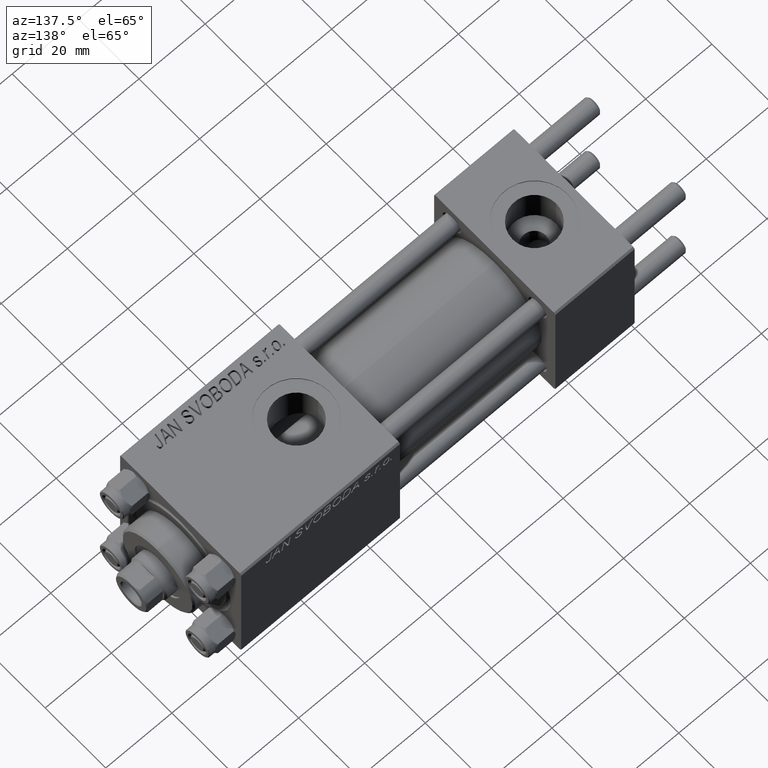
[diagram: clean part render]
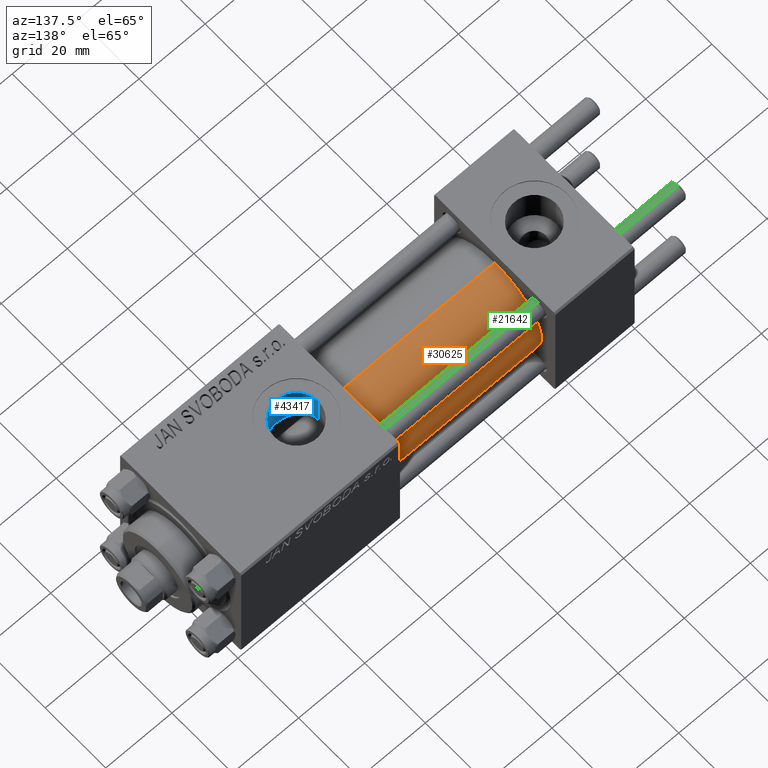
[diagram: same view with three faces highlighted in distinct colors, each labeled with its STEP entity id]
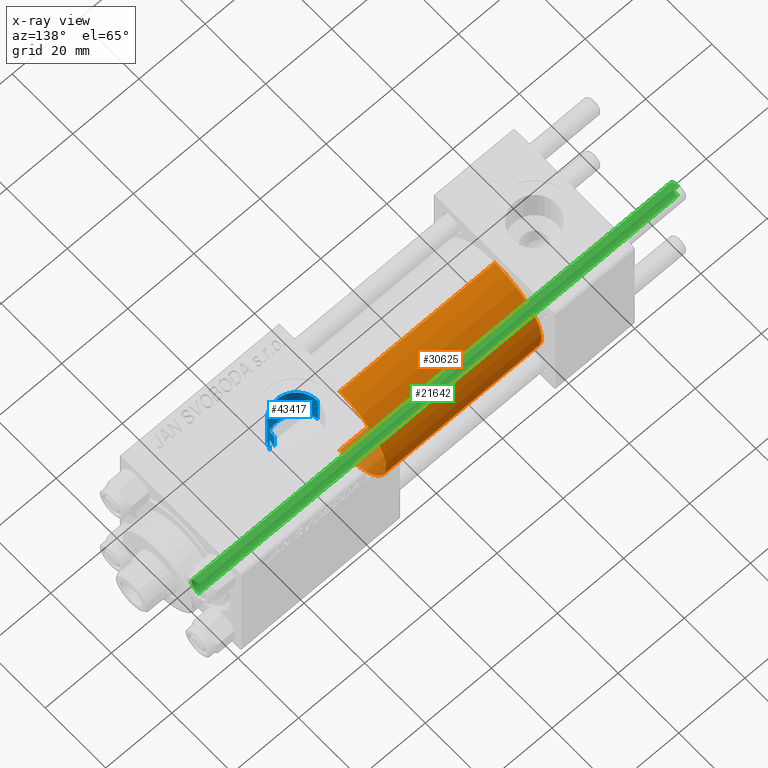
[diagram: x-ray of the same camera — body ghosted, the three highlighted faces saturated]
A machine part, auxiliary view with three faces highlighted in distinct colors.
The next image is the same camera in x-ray (body ghosted, the three faces saturated) — at least one of them is partly hidden behind the body in this view.
Their STEP definitions:

[orange] entity #30625 — the highlighted cylindrical surface (partial cylindrical patch) has radius 15.5 mm, axis along (-1, -0, -0).
#592 = VERTEX_POINT ( 'NONE', #14333 ) ;
#2558 = DIRECTION ( 'NONE',  ( 1.000000000000000000, 0.000000000000000000, 0.000000000000000000 ) ) ;
#6234 = EDGE_CURVE ( 'NONE', #41260, #29520, #35690, .T. ) ;
#7079 = EDGE_CURVE ( 'NONE', #592, #41260, #37062, .T. ) ;
#9340 = AXIS2_PLACEMENT_3D ( 'NONE', #44126, #24996, #9641 ) ;
#9641 = DIRECTION ( 'NONE',  ( 0.000000000000000000, 0.000000000000000000, 1.000000000000000000 ) ) ;
#10344 = CARTESIAN_POINT ( 'NONE',  ( 71.00000000000001421, 0.000000000000000000, 0.000000000000000000 ) ) ;
#10377 = FACE_OUTER_BOUND ( 'NONE', #29772, .T. ) ;
#11426 = CARTESIAN_POINT ( 'NONE',  ( 71.00000000000001421, 0.000000000000000000, 15.50000000000000000 ) ) ;
#12254 = DIRECTION ( 'NONE',  ( -1.000000000000000000, -0.000000000000000000, -0.000000000000000000 ) ) ;
#14333 = CARTESIAN_POINT ( 'NONE',  ( 71.00000000000001421, 1.898202538678397557E-15, -15.50000000000000000 ) ) ;
#18184 = CYLINDRICAL_SURFACE ( 'NONE', #9340, 15.50000000000000000 ) ;
#21073 = AXIS2_PLACEMENT_3D ( 'NONE', #10344, #25692, #41051 ) ;
#21658 = VECTOR ( 'NONE', #12254, 1000.000000000000000 ) ;
#23895 = ORIENTED_EDGE ( 'NONE', *, *, #46356, .F. ) ;
#24299 = ORIENTED_EDGE ( 'NONE', *, *, #42902, .F. ) ;
#24996 = DIRECTION ( 'NONE',  ( -1.000000000000000000, -0.000000000000000000, -0.000000000000000000 ) ) ;
#25494 = CARTESIAN_POINT ( 'NONE',  ( 71.00000000000001421, 1.898202538678397557E-15, -15.50000000000000000 ) ) ;
#25692 = DIRECTION ( 'NONE',  ( 1.000000000000000000, 0.000000000000000000, 0.000000000000000000 ) ) ;
#27697 = ORIENTED_EDGE ( 'NONE', *, *, #6234, .T. ) ;
#27868 = CARTESIAN_POINT ( 'NONE',  ( 71.00000000000001421, 0.000000000000000000, 15.50000000000000000 ) ) ;
#29520 = VERTEX_POINT ( 'NONE', #39040 ) ;
#29772 = EDGE_LOOP ( 'NONE', ( #23895, #41589, #27697, #24299 ) ) ;
#30625 = ADVANCED_FACE ( 'NONE', ( #10377 ), #18184, .T. ) ;
#31381 = VERTEX_POINT ( 'NONE', #11426 ) ;
#34716 = CIRCLE ( 'NONE', #21073, 15.50000000000000000 ) ;
#35690 = CIRCLE ( 'NONE', #44525, 15.50000000000000000 ) ;
#37062 = LINE ( 'NONE', #25494, #41321 ) ;
#39040 = CARTESIAN_POINT ( 'NONE',  ( 24.00000000000000000, 0.000000000000000000, 15.50000000000000000 ) ) ;
#39954 = LINE ( 'NONE', #27868, #21658 ) ;
#41051 = DIRECTION ( 'NONE',  ( 0.000000000000000000, 0.000000000000000000, -1.000000000000000000 ) ) ;
#41086 = CARTESIAN_POINT ( 'NONE',  ( 24.00000000000000000, 1.898202538678397557E-15, -15.50000000000000000 ) ) ;
#41260 = VERTEX_POINT ( 'NONE', #41086 ) ;
#41321 = VECTOR ( 'NONE', #48400, 1000.000000000000000 ) ;
#41589 = ORIENTED_EDGE ( 'NONE', *, *, #7079, .T. ) ;
#42902 = EDGE_CURVE ( 'NONE', #31381, #29520, #39954, .T. ) ;
#44126 = CARTESIAN_POINT ( 'NONE',  ( 71.00000000000001421, 0.000000000000000000, 0.000000000000000000 ) ) ;
#44525 = AXIS2_PLACEMENT_3D ( 'NONE', #47909, #2558, #48392 ) ;
#46356 = EDGE_CURVE ( 'NONE', #592, #31381, #34716, .T. ) ;
#47909 = CARTESIAN_POINT ( 'NONE',  ( 24.00000000000000000, 0.000000000000000000, 0.000000000000000000 ) ) ;
#48392 = DIRECTION ( 'NONE',  ( 0.000000000000000000, 0.000000000000000000, 1.000000000000000000 ) ) ;
#48400 = DIRECTION ( 'NONE',  ( -1.000000000000000000, -0.000000000000000000, -0.000000000000000000 ) ) ;

[blue] entity #43417 — the highlighted cylindrical surface (edge-blend (fillet) strip) has radius 6.58 mm, axis along (0, 0, -1).
#674 = ORIENTED_EDGE ( 'NONE', *, *, #16062, .T. ) ;
#1621 = EDGE_CURVE ( 'NONE', #18648, #30991, #8314, .T. ) ;
#1843 = VERTEX_POINT ( 'NONE', #15265 ) ;
#2386 = DIRECTION ( 'NONE',  ( 0.000000000000000000, 0.000000000000000000, -1.000000000000000000 ) ) ;
#2982 = CARTESIAN_POINT ( 'NONE',  ( 77.72104259078042787, -1.977670684214428043, 9.804446867313098224 ) ) ;
#3983 = CARTESIAN_POINT ( 'NONE',  ( 80.16020215073048405, -5.356874842517142632, 8.448716332623810388 ) ) ;
#4529 = DIRECTION ( 'NONE',  ( 0.000000000000000000, 0.000000000000000000, -1.000000000000000000 ) ) ;
#4708 = EDGE_LOOP ( 'NONE', ( #41036, #674, #21962, #44577, #46246, #30858 ) ) ;
#5186 = VERTEX_POINT ( 'NONE', #43993 ) ;
#5467 = EDGE_CURVE ( 'NONE', #1843, #21233, #15627, .T. ) ;
#5787 = CARTESIAN_POINT ( 'NONE',  ( 87.89699318866286148, -5.305288046703262594, 8.477775428654018341 ) ) ;
#6770 = CARTESIAN_POINT ( 'NONE',  ( 78.91948560029506154, -4.185857250486422210, 9.083179932574980242 ) ) ;
#6889 = CYLINDRICAL_SURFACE ( 'NONE', #39372, 6.580000000001542837 ) ;
#7123 = CARTESIAN_POINT ( 'NONE',  ( 90.58000000000154728, 1.836897619300433381E-15, 15.00000000000000000 ) ) ;
#7623 = CARTESIAN_POINT ( 'NONE',  ( 90.30000000000001137, -1.899052395280420136, 14.87930105885285670 ) ) ;
#8314 = LINE ( 'NONE', #23937, #18021 ) ;
#8827 = DIRECTION ( 'NONE',  ( -0.000000000000000000, -0.000000000000000000, 1.000000000000000000 ) ) ;
#9475 = EDGE_CURVE ( 'NONE', #34911, #1843, #48674, .T. ) ;
#9574 = CARTESIAN_POINT ( 'NONE',  ( 88.19718467613775204, -5.071121963172631197, 8.619888602053425330 ) ) ;
#9934 = DIRECTION ( 'NONE',  ( -1.000000000000000000, 0.000000000000000000, 0.000000000000000000 ) ) ;
#10550 = CARTESIAN_POINT ( 'NONE',  ( 80.48004077057568395, -5.572564248888139282, 8.306509127488531874 ) ) ;
#10797 = CARTESIAN_POINT ( 'NONE',  ( 78.16834223545102134, -3.071777053897142729, 9.522948337697433985 ) ) ;
#12702 = CARTESIAN_POINT ( 'NONE',  ( 90.58000000000154728, -9.289058821376599092E-16, 19.80000000000000071 ) ) ;
#13102 = CARTESIAN_POINT ( 'NONE',  ( 82.64228046384747017, -6.441510615516904181, 7.649229527461429257 ) ) ;
#13359 = CARTESIAN_POINT ( 'NONE',  ( 88.75695250607545006, -4.561896889324866144, 8.903678834413629062 ) ) ;
#13842 = CARTESIAN_POINT ( 'NONE',  ( 87.26053252520590320, -5.728070196491263921, 8.200680661955367157 ) ) ;
#14439 = CARTESIAN_POINT ( 'NONE',  ( 90.46247493449395449, -1.278752734038846484, 14.94875937294843737 ) ) ;
#15265 = CARTESIAN_POINT ( 'NONE',  ( 77.41999999999846693, -1.734723475976806897E-15, 19.80000000000000071 ) ) ;
#15627 = LINE ( 'NONE', #46071, #40513 ) ;
#16062 = EDGE_CURVE ( 'NONE', #34911, #5186, #21533, .T. ) ;
#16889 = B_SPLINE_CURVE_WITH_KNOTS ( 'NONE', 3,
 ( #7123, #26506, #34318, #14439, #38339, #7623 ),
 .UNSPECIFIED., .F., .F.,
 ( 4, 2, 4 ),
 ( 0.001923267627926015643, 0.002881828648815649985, 0.003840389669705283893 ),
 .UNSPECIFIED. ) ;
#17125 = CARTESIAN_POINT ( 'NONE',  ( 90.03601729897108896, -2.648259396322893089, 9.649752199410302822 ) ) ;
#17380 = CARTESIAN_POINT ( 'NONE',  ( 83.84132420776212768, -6.581215419008478840, 7.529131557805247787 ) ) ;
#17625 = CARTESIAN_POINT ( 'NONE',  ( 89.47667727346387778, -3.667500690329295931, 9.309199649381490360 ) ) ;
#18021 = VECTOR ( 'NONE', #8827, 1000.000000000000000 ) ;
#18117 = CARTESIAN_POINT ( 'NONE',  ( 87.74050804270864035, -5.416766998257490862, 8.406790300727948306 ) ) ;
#18351 = CARTESIAN_POINT ( 'NONE',  ( 77.99714712711040931, -2.723766581249583485, 9.629423614267258458 ) ) ;
#18589 = CARTESIAN_POINT ( 'NONE',  ( 78.79875737437667738, -4.034886358906389248, 9.151392050136836431 ) ) ;
#18648 = VERTEX_POINT ( 'NONE', #38623 ) ;
#20916 = CARTESIAN_POINT ( 'NONE',  ( 90.18384735178129574, -2.284382302762963501, 9.743491762341799145 ) ) ;
#21154 = CARTESIAN_POINT ( 'NONE',  ( 85.83530013697877337, -6.321933289868085559, 7.748495657718812879 ) ) ;
#21233 = VERTEX_POINT ( 'NONE', #29696 ) ;
#21533 = LINE ( 'NONE', #36880, #42440 ) ;
#21962 = ORIENTED_EDGE ( 'NONE', *, *, #48186, .T. ) ;
#22130 = CARTESIAN_POINT ( 'NONE',  ( 81.15150766959031614, -5.943877247083126925, 8.044991576418468071 ) ) ;
#23937 = CARTESIAN_POINT ( 'NONE',  ( 90.30000000000001137, -1.899052395280420136, 42.80000000000000426 ) ) ;
#24686 = CARTESIAN_POINT ( 'NONE',  ( 85.05563542025694801, -6.507095227759212008, 7.594134426896898660 ) ) ;
#25041 = DIRECTION ( 'NONE',  ( 0.000000000000000000, 0.000000000000000000, -1.000000000000000000 ) ) ;
#25423 = CARTESIAN_POINT ( 'NONE',  ( 86.39211994537743067, -6.132805105780794186, 7.899218132206713427 ) ) ;
#25658 = CARTESIAN_POINT ( 'NONE',  ( 88.34134544482054707, -4.948221379670047604, 8.691185487698470880 ) ) ;
#25898 = CARTESIAN_POINT ( 'NONE',  ( 78.46622740148208663, -3.565203004854784474, 9.344512687240586146 ) ) ;
#26398 = CARTESIAN_POINT ( 'NONE',  ( 77.41999999999846693, 1.225496641077837722E-15, 9.999999999999998224 ) ) ;
#26506 = CARTESIAN_POINT ( 'NONE',  ( 90.58000000000156149, -0.3230844264541308797, 14.99999999999999822 ) ) ;
#28452 = CARTESIAN_POINT ( 'NONE',  ( 82.25327158685063011, -6.347078162380216604, 7.727766182684421281 ) ) ;
#28702 = CARTESIAN_POINT ( 'NONE',  ( 89.68316260257665817, -3.338928794743214468, 9.433056230293079381 ) ) ;
#29194 = CARTESIAN_POINT ( 'NONE',  ( 86.92434068310684836, -5.907044672534588869, 8.071096920454994716 ) ) ;
#29696 = CARTESIAN_POINT ( 'NONE',  ( 77.41999999999846693, 1.225496641077837722E-15, 9.999999999999998224 ) ) ;
#30171 = CARTESIAN_POINT ( 'NONE',  ( 79.57031396582577543, -4.880372653833860319, 8.732632965334568453 ) ) ;
#30663 = CARTESIAN_POINT ( 'NONE',  ( 77.56705469300284506, -1.397686090543303283, 9.903818455115036556 ) ) ;
#30858 = ORIENTED_EDGE ( 'NONE', *, *, #5467, .F. ) ;
#30946 = B_SPLINE_CURVE_WITH_KNOTS ( 'NONE', 3,
 ( #36750, #20916, #17125, #28702, #17625, #47843, #13359, #25658, #9574, #5787, #18117, #13842, #29194, #25423, #48578, #21154, #37232, #24686, #44541, #40775, #17380, #32739, #48091, #47590, #13102, #28452, #43817, #40043, #22130, #10550, #3983, #30171, #41256, #6770, #18589, #37483, #25898, #10797, #18351, #33466, #2982, #33707, #30663, #34460, #38481, #26398 ),
 .UNSPECIFIED., .F., .F.,
 ( 4, 2, 2, 2, 2, 2, 2, 2, 2, 2, 2, 2, 2, 2, 2, 2, 2, 2, 2, 2, 2, 2, 4 ),
 ( 0.000000000000000000, 0.001207791230099372441, 0.002415582460198744882, 0.003623373690298115155, 0.004227269305347786631, 0.004831164920397457672, 0.006038956150496800623, 0.006642851765546489880, 0.007246747380596180003, 0.008454538610695601017, 0.009058434225745329305, 0.009662329840795061062, 0.01026622545584479108, 0.01087012107089451937, 0.01207791230099397942, 0.01328570353109343946, 0.01449349476119290124, 0.01509739037624264514, 0.01570128599129239078, 0.01690907722139185429, 0.01751297283644158778, 0.01811686845149132127, 0.01932465968159079173 ),
 .UNSPECIFIED. ) ;
#30974 = CARTESIAN_POINT ( 'NONE',  ( 84.00000000000000000, -1.734723475976806897E-15, 19.80000000000000071 ) ) ;
#30991 = VERTEX_POINT ( 'NONE', #35161 ) ;
#32739 = CARTESIAN_POINT ( 'NONE',  ( 83.43610688730976221, -6.558932760434257325, 7.548550817887899278 ) ) ;
#32854 = FACE_OUTER_BOUND ( 'NONE', #4708, .T. ) ;
#33466 = CARTESIAN_POINT ( 'NONE',  ( 77.78468472322818172, -2.169203254887546617, 9.763745855050723677 ) ) ;
#33707 = CARTESIAN_POINT ( 'NONE',  ( 77.61241581301695192, -1.592248641449762747, 9.874366003595781649 ) ) ;
#34318 = CARTESIAN_POINT ( 'NONE',  ( 90.55605924908761040, -0.6456608678150235203, 14.98945420583744870 ) ) ;
#34460 = CARTESIAN_POINT ( 'NONE',  ( 77.45763783829498550, -0.8084208477571691587, 9.975121118623741623 ) ) ;
#34513 = DIRECTION ( 'NONE',  ( 1.000000000000000000, 0.000000000000000000, 0.000000000000000000 ) ) ;
#34911 = VERTEX_POINT ( 'NONE', #12702 ) ;
#35161 = CARTESIAN_POINT ( 'NONE',  ( 90.30000000000001137, -1.899052395280420136, 14.87930105885285670 ) ) ;
#36750 = CARTESIAN_POINT ( 'NONE',  ( 90.30000000000001137, -1.899052395280420136, 9.818024241158690657 ) ) ;
#36880 = CARTESIAN_POINT ( 'NONE',  ( 90.58000000000154728, -9.289058821376597120E-16, 42.80000000000000426 ) ) ;
#37232 = CARTESIAN_POINT ( 'NONE',  ( 85.64143006621837628, -6.375121249720390182, 7.704616833470068649 ) ) ;
#37483 = CARTESIAN_POINT ( 'NONE',  ( 78.57242859662287060, -3.724876030303978069, 9.281895439158068584 ) ) ;
#38030 = EDGE_CURVE ( 'NONE', #18648, #21233, #30946, .T. ) ;
#38339 = CARTESIAN_POINT ( 'NONE',  ( 90.39284622331669539, -1.591040247564623700, 14.91861279833453757 ) ) ;
#38481 = CARTESIAN_POINT ( 'NONE',  ( 77.41999999999848114, -0.4081853129699585803, 10.00000000000000711 ) ) ;
#38623 = CARTESIAN_POINT ( 'NONE',  ( 90.30000000000001137, -1.899052395280420136, 9.818024241158690657 ) ) ;
#39372 = AXIS2_PLACEMENT_3D ( 'NONE', #45388, #25041, #9934 ) ;
#40043 = CARTESIAN_POINT ( 'NONE',  ( 81.50365122394816808, -6.100731835174567408, 7.925108619061488113 ) ) ;
#40513 = VECTOR ( 'NONE', #4529, 1000.000000000000000 ) ;
#40775 = CARTESIAN_POINT ( 'NONE',  ( 84.04743762832036680, -6.582974628388996940, 7.527585999843090292 ) ) ;
#41036 = ORIENTED_EDGE ( 'NONE', *, *, #9475, .F. ) ;
#41256 = CARTESIAN_POINT ( 'NONE',  ( 79.29730408322323854, -4.618177244596259889, 8.875509752877485781 ) ) ;
#42440 = VECTOR ( 'NONE', #2386, 1000.000000000000000 ) ;
#43417 = ADVANCED_FACE ( 'NONE', ( #32854 ), #6889, .F. ) ;
#43817 = CARTESIAN_POINT ( 'NONE',  ( 82.06128195139868353, -6.290973204691355569, 7.773687993804112573 ) ) ;
#43993 = CARTESIAN_POINT ( 'NONE',  ( 90.58000000000154728, 1.836897619300433381E-15, 15.00000000000000000 ) ) ;
#44541 = CARTESIAN_POINT ( 'NONE',  ( 84.65744280686338641, -6.559709605006789346, 7.547889352008899877 ) ) ;
#44577 = ORIENTED_EDGE ( 'NONE', *, *, #1621, .F. ) ;
#45388 = CARTESIAN_POINT ( 'NONE',  ( 84.00000000000000000, -1.734723475976806897E-15, 42.80000000000000426 ) ) ;
#46071 = CARTESIAN_POINT ( 'NONE',  ( 77.41999999999846693, -1.734723475976806897E-15, 42.80000000000000426 ) ) ;
#46246 = ORIENTED_EDGE ( 'NONE', *, *, #38030, .T. ) ;
#46253 = AXIS2_PLACEMENT_3D ( 'NONE', #30974, #46328, #34513 ) ;
#46328 = DIRECTION ( 'NONE',  ( -0.000000000000000000, -0.000000000000000000, -1.000000000000000000 ) ) ;
#47590 = CARTESIAN_POINT ( 'NONE',  ( 82.83871781191031403, -6.479820246555592966, 7.616654439233103702 ) ) ;
#47843 = CARTESIAN_POINT ( 'NONE',  ( 89.01171256368644435, -4.281038711601321545, 9.043476487246550732 ) ) ;
#48091 = CARTESIAN_POINT ( 'NONE',  ( 83.23563096081821300, -6.538530929802691460, 7.566314066596407706 ) ) ;
#48186 = EDGE_CURVE ( 'NONE', #5186, #30991, #16889, .T. ) ;
#48578 = CARTESIAN_POINT ( 'NONE',  ( 86.21002104074251804, -6.200884946022790167, 7.845702732414576275 ) ) ;
#48674 = CIRCLE ( 'NONE', #46253, 6.580000000001542837 ) ;

[green] entity #21642 — the highlighted cylindrical surface (edge-blend (fillet) strip) has radius 2.5 mm, axis along (-1, -0, -0).
#357 = DIRECTION ( 'NONE',  ( -0.000000000000000000, -0.000000000000000000, 1.000000000000000000 ) ) ;
#480 = CARTESIAN_POINT ( 'NONE',  ( 2.500000000000000000, 3.061616997868383141E-16, 0.5000000000000559552 ) ) ;
#2121 = AXIS2_PLACEMENT_3D ( 'NONE', #16573, #13295, #32676 ) ;
#6746 = AXIS2_PLACEMENT_3D ( 'NONE', #12002, #35411, #42956 ) ;
#7728 = FACE_OUTER_BOUND ( 'NONE', #10321, .T. ) ;
#8121 = LINE ( 'NONE', #47146, #9843 ) ;
#8482 = ORIENTED_EDGE ( 'NONE', *, *, #48293, .F. ) ;
#9843 = VECTOR ( 'NONE', #24231, 1000.000000000000000 ) ;
#10321 = EDGE_LOOP ( 'NONE', ( #8482, #21373, #24157, #30590 ) ) ;
#12002 = CARTESIAN_POINT ( 'NONE',  ( 0.000000000000000000, 0.000000000000000000, 146.0000000000000000 ) ) ;
#12769 = EDGE_CURVE ( 'NONE', #22203, #38321, #39100, .T. ) ;
#13295 = DIRECTION ( 'NONE',  ( 0.000000000000000000, 0.000000000000000000, -1.000000000000000000 ) ) ;
#15721 = DIRECTION ( 'NONE',  ( 1.000000000000000000, 0.000000000000000000, 0.000000000000000000 ) ) ;
#15973 = DIRECTION ( 'NONE',  ( -0.000000000000000000, -0.000000000000000000, -1.000000000000000000 ) ) ;
#16217 = CARTESIAN_POINT ( 'NONE',  ( -2.500000000000000000, 0.000000000000000000, 146.0000000000000000 ) ) ;
#16573 = CARTESIAN_POINT ( 'NONE',  ( 0.000000000000000000, 0.000000000000000000, 145.5000000000000284 ) ) ;
#16647 = VERTEX_POINT ( 'NONE', #480 ) ;
#19187 = CARTESIAN_POINT ( 'NONE',  ( 2.500000000000000000, 3.061616997868383141E-16, 145.5000000000000284 ) ) ;
#19493 = CARTESIAN_POINT ( 'NONE',  ( 0.000000000000000000, 0.000000000000000000, 0.5000000000000559552 ) ) ;
#19754 = LINE ( 'NONE', #16217, #47292 ) ;
#21373 = ORIENTED_EDGE ( 'NONE', *, *, #12769, .T. ) ;
#21642 = ADVANCED_FACE ( 'NONE', ( #7728 ), #23078, .T. ) ;
#22203 = VERTEX_POINT ( 'NONE', #19187 ) ;
#23078 = CYLINDRICAL_SURFACE ( 'NONE', #6746, 2.500000000000000000 ) ;
#24157 = ORIENTED_EDGE ( 'NONE', *, *, #34956, .T. ) ;
#24231 = DIRECTION ( 'NONE',  ( -0.000000000000000000, -0.000000000000000000, -1.000000000000000000 ) ) ;
#30590 = ORIENTED_EDGE ( 'NONE', *, *, #45775, .T. ) ;
#32420 = CARTESIAN_POINT ( 'NONE',  ( -2.500000000000000000, 0.000000000000000000, 145.5000000000000284 ) ) ;
#32676 = DIRECTION ( 'NONE',  ( 1.000000000000000000, 0.000000000000000000, 0.000000000000000000 ) ) ;
#33364 = CARTESIAN_POINT ( 'NONE',  ( -2.500000000000000000, 0.000000000000000000, 0.5000000000000559552 ) ) ;
#34956 = EDGE_CURVE ( 'NONE', #38321, #45550, #19754, .T. ) ;
#35411 = DIRECTION ( 'NONE',  ( -0.000000000000000000, -0.000000000000000000, -1.000000000000000000 ) ) ;
#37896 = CIRCLE ( 'NONE', #43553, 2.500000000000000000 ) ;
#38321 = VERTEX_POINT ( 'NONE', #32420 ) ;
#39100 = CIRCLE ( 'NONE', #2121, 2.500000000000000000 ) ;
#42956 = DIRECTION ( 'NONE',  ( -1.000000000000000000, 0.000000000000000000, 0.000000000000000000 ) ) ;
#43553 = AXIS2_PLACEMENT_3D ( 'NONE', #19493, #357, #15721 ) ;
#45550 = VERTEX_POINT ( 'NONE', #33364 ) ;
#45775 = EDGE_CURVE ( 'NONE', #45550, #16647, #37896, .T. ) ;
#47146 = CARTESIAN_POINT ( 'NONE',  ( 2.500000000000000000, 3.061616997868383141E-16, 146.0000000000000000 ) ) ;
#47292 = VECTOR ( 'NONE', #15973, 1000.000000000000000 ) ;
#48293 = EDGE_CURVE ( 'NONE', #22203, #16647, #8121, .T. ) ;